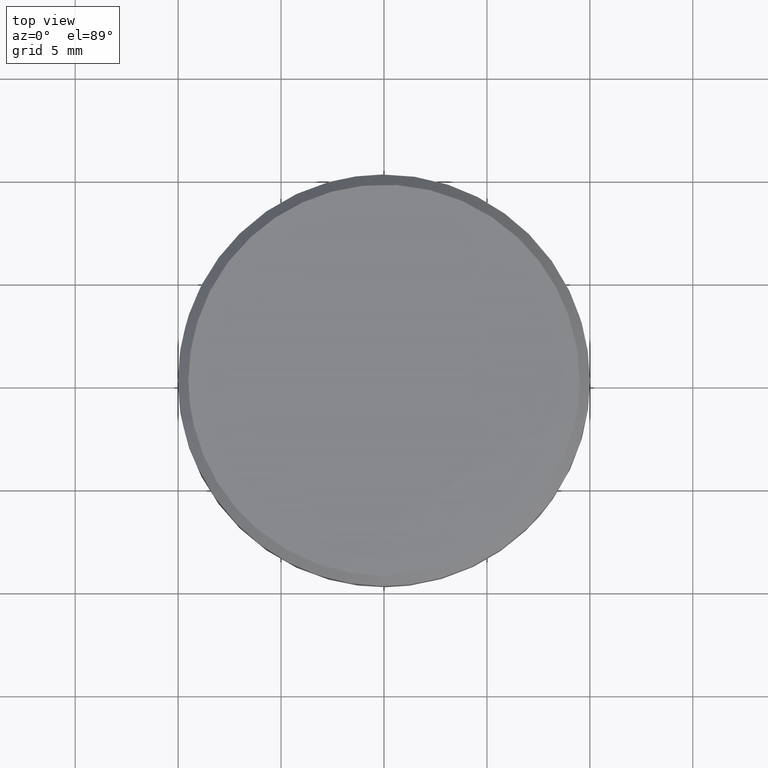
[diagram: clean part render]
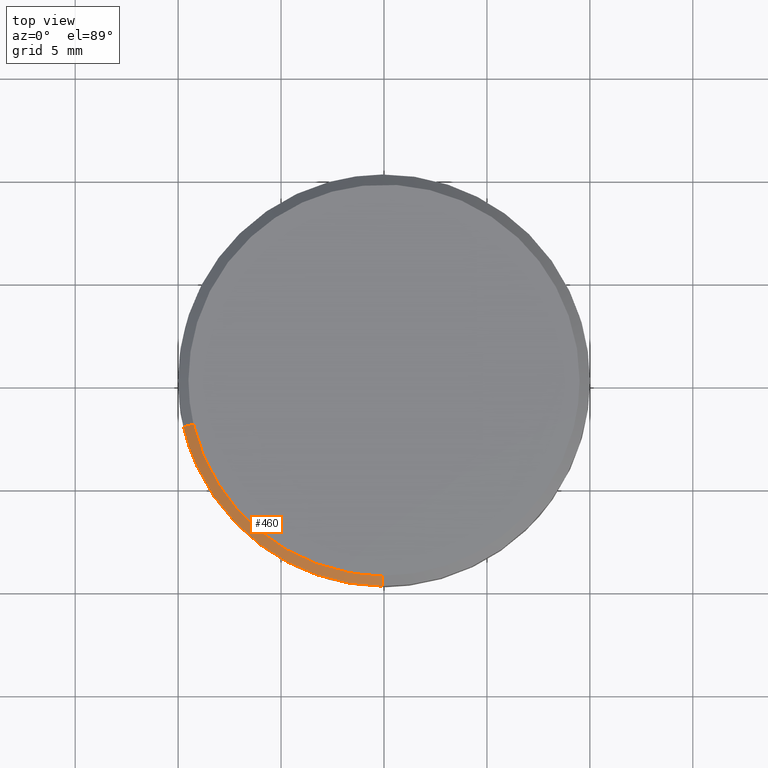
[diagram: same view with one face highlighted and labeled with its STEP entity id]
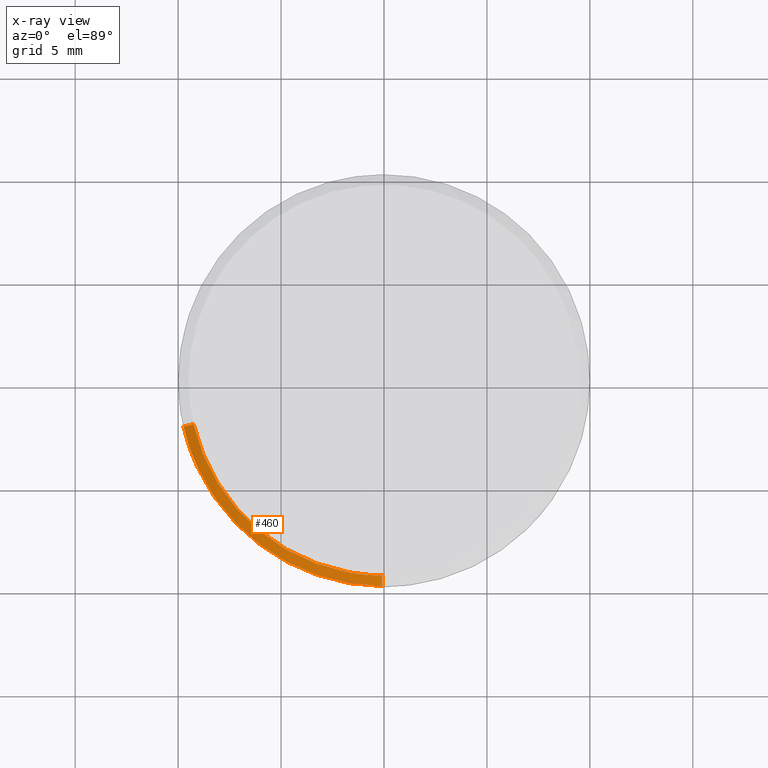
[diagram: x-ray of the same camera — body ghosted, the highlighted face saturated]
A machine part, top view. The second image highlights one B-rep face of the part: STEP entity #460.
The next image is the same camera in x-ray: the body ghosted, the highlighted face saturated — about 0% of this face is hidden behind the body in this view.
In plain terms, the highlighted face is a freeform B-spline surface patch.
Its self-contained STEP definition (entity closure, byte-faithful):
#271=CARTESIAN_POINT('',(-9.742181531784778,-2.256080451086446,10.999999999998970));
#272=VERTEX_POINT('',#271);
#288=CARTESIAN_POINT('',(-9.255072455196380,-2.143276428524653,11.499999999999879));
#289=VERTEX_POINT('',#288);
#290=CARTESIAN_POINT('',(-9.255072455196380,-2.143276428524653,11.499999999999879));
#291=CARTESIAN_POINT('',(-9.742181531784778,-2.256080451086446,10.999999999998970));
#292=QUASI_UNIFORM_CURVE('',1,(#290,#291),.UNSPECIFIED.,.F.,.U.);
#293=EDGE_CURVE('',#289,#272,#292,.T.);
#327=CARTESIAN_POINT('',(-0.082902087252672,-9.499638269111923,11.499999999997639));
#328=VERTEX_POINT('',#327);
#344=CARTESIAN_POINT('',(-0.087265355013846,-9.999619230645545,10.999999999996030));
#345=VERTEX_POINT('',#344);
#346=CARTESIAN_POINT('',(-0.082902087252672,-9.499638269111923,11.499999999997639));
#347=CARTESIAN_POINT('',(-0.087265355013846,-9.999619230645545,10.999999999996030));
#348=QUASI_UNIFORM_CURVE('',1,(#346,#347),.UNSPECIFIED.,.F.,.U.);
#349=EDGE_CURVE('',#328,#345,#348,.T.);
#416=CARTESIAN_POINT('',(-0.082793005540822,-9.487138745071267,11.512500000000120));
#417=CARTESIAN_POINT('',(-7.556664895367825,-9.421915253203679,11.512500000000120));
#418=CARTESIAN_POINT('',(-9.242894728281831,-2.140456327958789,11.512500000000115));
#419=CARTESIAN_POINT('',(-0.087377163719812,-10.012431242780981,10.987187500000120));
#420=CARTESIAN_POINT('',(-7.975069167077800,-9.943596397493447,10.987187500000118));
#421=CARTESIAN_POINT('',(-9.754663701873520,-2.258971054154414,10.987187500000111));
#429=(BOUNDED_SURFACE()B_SPLINE_SURFACE(2,1,((#416,#419),(#417,#420),(#418,#421)),.UNSPECIFIED.,.F.,.F.,.U.)B_SPLINE_SURFACE_WITH_KNOTS((3,3),(2,2),(0.0,13.874467244310500),(0.0,1.0),.UNSPECIFIED.)GEOMETRIC_REPRESENTATION_ITEM()RATIONAL_B_SPLINE_SURFACE(((1.0,1.0),(0.753969696196700,0.753969696196700),(0.921270302782944,0.921270302782944)))REPRESENTATION_ITEM('')SURFACE());
#430=CARTESIAN_POINT('',(-0.087265355013846,-9.999619230645545,10.999999999996021));
#431=CARTESIAN_POINT('',(-7.964864184835776,-9.930872467097576,11.000000000000117));
#432=CARTESIAN_POINT('',(-9.742181531784778,-2.256080451086446,10.999999999998973));
#440=(BOUNDED_CURVE()B_SPLINE_CURVE(2,(#430,#431,#432),.UNSPECIFIED.,.F.,.U.)B_SPLINE_CURVE_WITH_KNOTS((3,3),(0.751539894336047,0.961422971784283),.UNSPECIFIED.)CURVE()GEOMETRIC_REPRESENTATION_ITEM()RATIONAL_B_SPLINE_CURVE((0.996414028097954,0.753549905437045,0.923556557442256))REPRESENTATION_ITEM(''));
#441=EDGE_CURVE('',#345,#272,#440,.T.);
#442=ORIENTED_EDGE('',*,*,#441,.F.);
#443=ORIENTED_EDGE('',*,*,#349,.F.);
#444=CARTESIAN_POINT('',(-9.255072455196380,-2.143276428524653,11.499999999999874));
#445=CARTESIAN_POINT('',(-7.566620975602279,-9.434328843759149,11.500000000000119));
#446=CARTESIAN_POINT('',(-0.082902087252672,-9.499638269111923,11.499999999997639));
#454=(BOUNDED_CURVE()B_SPLINE_CURVE(2,(#444,#445,#446),.UNSPECIFIED.,.F.,.U.)B_SPLINE_CURVE_WITH_KNOTS((3,3),(0.538577028215460,0.748460105664342),.UNSPECIFIED.)CURVE()GEOMETRIC_REPRESENTATION_ITEM()RATIONAL_B_SPLINE_CURVE((0.923556557442673,0.753549905436432,0.996414028098854))REPRESENTATION_ITEM(''));
#455=EDGE_CURVE('',#289,#328,#454,.T.);
#456=ORIENTED_EDGE('',*,*,#455,.F.);
#457=ORIENTED_EDGE('',*,*,#293,.T.);
#458=EDGE_LOOP('',(#442,#443,#456,#457));
#459=FACE_OUTER_BOUND('',#458,.T.);
#460=ADVANCED_FACE('',(#459),#429,.T.);